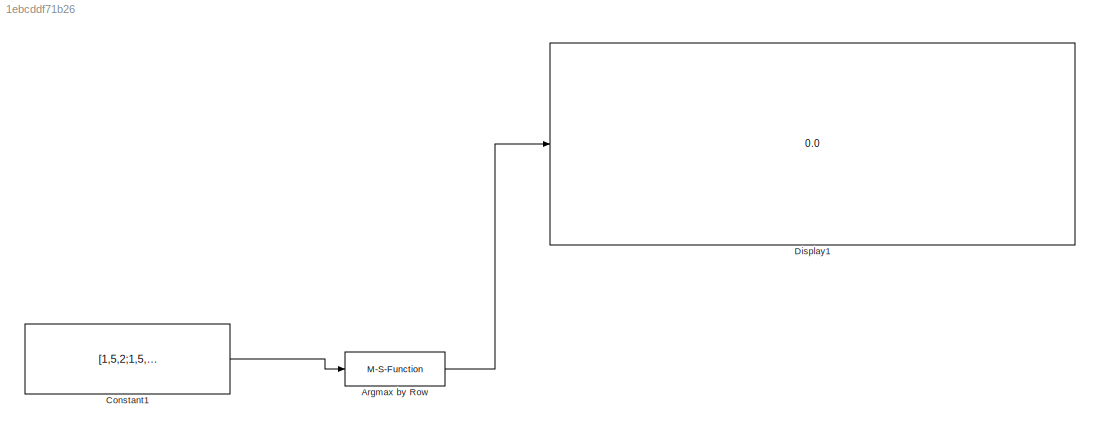
MODEL slx_1ebcddf71b26
KIND model
CONFIG AbsTol = auto
CONFIG EnableMultiTasking = off
CONFIG FixedStep = auto
CONFIG MaxStep = auto
CONFIG MinStep = auto
CONFIG RelTol = 1e-3
CONFIG SampleTimeConstraint = Unconstrained
CONFIG Solver = VariableStepAuto
CONFIG SolverName = VariableStepAuto
CONFIG StartTime = 0.0
CONFIG StopTime = 10.0
BLOCK [M-S-Function] Argmax by Row 
  FunctionName = sfun_argmax
  Ports = [1, 1]
BLOCK [Constant] Constant1
  Value = [1,5,2;1,5,2]
  VectorParams1D = off
BLOCK [Display] Display1
  Decimation = 1
  Ports = [1]
LINE Argmax by Row :1 -> Display1:1
LINE Constant1:1 -> Argmax by Row :1
